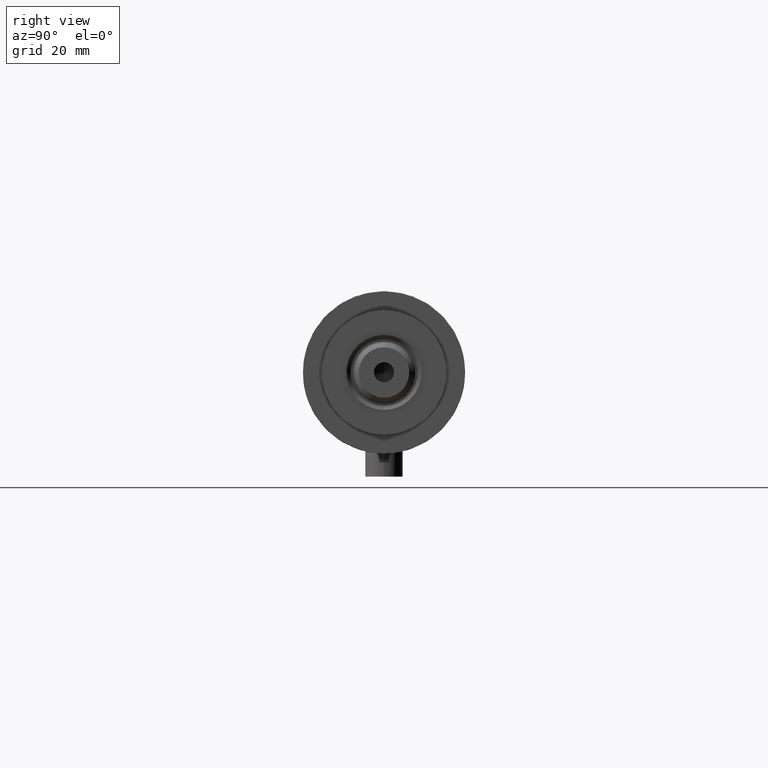
[diagram: clean part render]
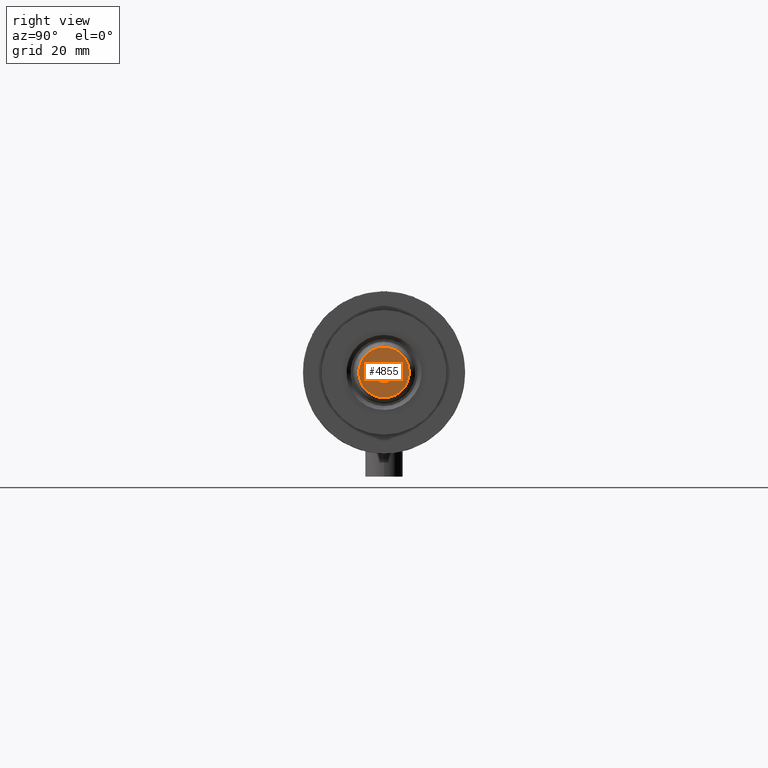
[diagram: same view with one face highlighted and labeled with its STEP entity id]
A machine part, right view. The second image highlights one B-rep face of the part: STEP entity #4855.
In plain terms, the highlighted planar face has unit normal (1, 0, -0).
Its self-contained STEP definition (entity closure, byte-faithful):
#112 = EDGE_CURVE ( 'NONE', #2244, #2225, #153, .T. ) ;
#146 = CARTESIAN_POINT ( 'NONE',  ( 0.000000000000000000, 0.000000000000000000, 179.6000000000000227 ) ) ;
#153 = CIRCLE ( 'NONE', #3319, 8.100000000000051159 ) ;
#167 = DIRECTION ( 'NONE',  ( 1.000000000000000000, 0.000000000000000000, -0.000000000000000000 ) ) ;
#258 = CARTESIAN_POINT ( 'NONE',  ( 8.100000000000051159, 1.077689183249673958E-15, 179.6000000000000227 ) ) ;
#265 = CARTESIAN_POINT ( 'NONE',  ( 0.000000000000000000, 0.000000000000000000, 179.6000000000000227 ) ) ;
#387 = DIRECTION ( 'NONE',  ( 1.000000000000000000, 0.000000000000000000, 0.000000000000000000 ) ) ;
#431 = VERTEX_POINT ( 'NONE', #901 ) ;
#723 = CARTESIAN_POINT ( 'NONE',  ( 0.000000000000000000, 0.000000000000000000, 179.6000000000000227 ) ) ;
#735 = AXIS2_PLACEMENT_3D ( 'NONE', #265, #3239, #1309 ) ;
#773 = AXIS2_PLACEMENT_3D ( 'NONE', #146, #3177, #167 ) ;
#901 = CARTESIAN_POINT ( 'NONE',  ( -3.249999999999998224, 3.980102097228895766E-16, 179.6000000000000227 ) ) ;
#1235 = ORIENTED_EDGE ( 'NONE', *, *, #112, .T. ) ;
#1309 = DIRECTION ( 'NONE',  ( 1.000000000000000000, 0.000000000000000000, 0.000000000000000000 ) ) ;
#1648 = EDGE_CURVE ( 'NONE', #431, #4748, #1830, .T. ) ;
#1673 = FACE_BOUND ( 'NONE', #4624, .T. ) ;
#1778 = ORIENTED_EDGE ( 'NONE', *, *, #4870, .F. ) ;
#1826 = CARTESIAN_POINT ( 'NONE',  ( 0.000000000000000000, 0.000000000000000000, 179.6000000000000227 ) ) ;
#1830 = CIRCLE ( 'NONE', #735, 3.249999999999998224 ) ;
#2225 = VERTEX_POINT ( 'NONE', #4305 ) ;
#2244 = VERTEX_POINT ( 'NONE', #258 ) ;
#2596 = ORIENTED_EDGE ( 'NONE', *, *, #1648, .F. ) ;
#2646 = DIRECTION ( 'NONE',  ( 0.000000000000000000, 0.000000000000000000, 1.000000000000000000 ) ) ;
#2656 = AXIS2_PLACEMENT_3D ( 'NONE', #1826, #3334, #3385 ) ;
#2810 = CARTESIAN_POINT ( 'NONE',  ( 0.000000000000000000, 0.000000000000000000, 179.6000000000000227 ) ) ;
#3159 = FACE_OUTER_BOUND ( 'NONE', #4043, .T. ) ;
#3177 = DIRECTION ( 'NONE',  ( 0.000000000000000000, 0.000000000000000000, 1.000000000000000000 ) ) ;
#3239 = DIRECTION ( 'NONE',  ( -0.000000000000000000, -0.000000000000000000, 1.000000000000000000 ) ) ;
#3319 = AXIS2_PLACEMENT_3D ( 'NONE', #723, #2646, #387 ) ;
#3334 = DIRECTION ( 'NONE',  ( 0.000000000000000000, 0.000000000000000000, 1.000000000000000000 ) ) ;
#3385 = DIRECTION ( 'NONE',  ( 1.000000000000000000, 0.000000000000000000, 0.000000000000000000 ) ) ;
#3444 = CIRCLE ( 'NONE', #3516, 3.249999999999998224 ) ;
#3516 = AXIS2_PLACEMENT_3D ( 'NONE', #2810, #4308, #4234 ) ;
#4043 = EDGE_LOOP ( 'NONE', ( #4443, #1235 ) ) ;
#4140 = CIRCLE ( 'NONE', #2656, 8.100000000000051159 ) ;
#4234 = DIRECTION ( 'NONE',  ( 1.000000000000000000, 0.000000000000000000, 0.000000000000000000 ) ) ;
#4305 = CARTESIAN_POINT ( 'NONE',  ( -8.100000000000051159, 0.000000000000000000, 179.6000000000000227 ) ) ;
#4308 = DIRECTION ( 'NONE',  ( -0.000000000000000000, -0.000000000000000000, 1.000000000000000000 ) ) ;
#4402 = CARTESIAN_POINT ( 'NONE',  ( 3.249999999999998224, 0.000000000000000000, 179.6000000000000227 ) ) ;
#4443 = ORIENTED_EDGE ( 'NONE', *, *, #4483, .T. ) ;
#4483 = EDGE_CURVE ( 'NONE', #2225, #2244, #4140, .T. ) ;
#4614 = PLANE ( 'NONE',  #773 ) ;
#4624 = EDGE_LOOP ( 'NONE', ( #1778, #2596 ) ) ;
#4748 = VERTEX_POINT ( 'NONE', #4402 ) ;
#4855 = ADVANCED_FACE ( 'NONE', ( #3159, #1673 ), #4614, .T. ) ;
#4870 = EDGE_CURVE ( 'NONE', #4748, #431, #3444, .T. ) ;